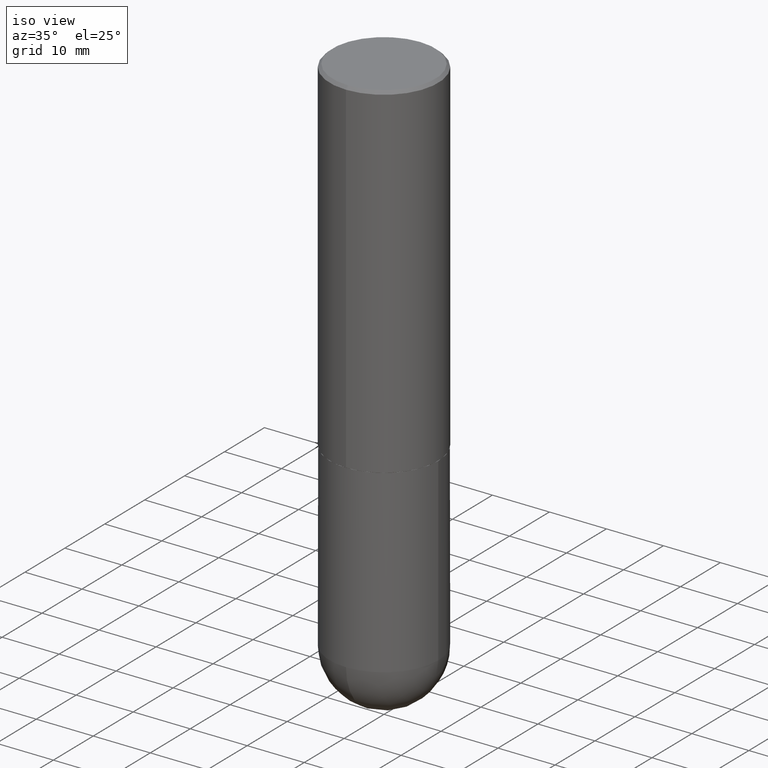
[diagram: clean part render]
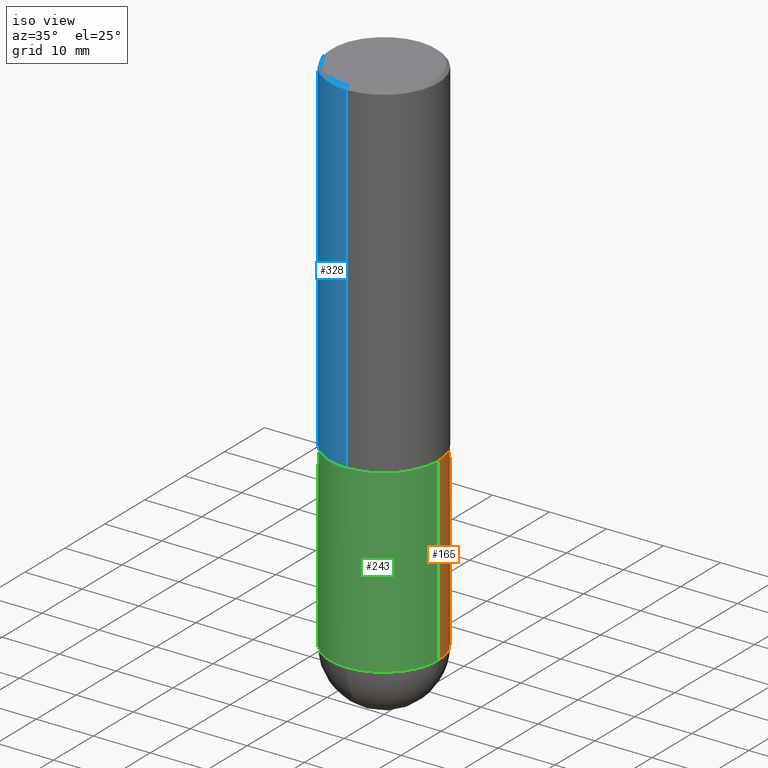
[diagram: same view with three faces highlighted in distinct colors, each labeled with its STEP entity id]
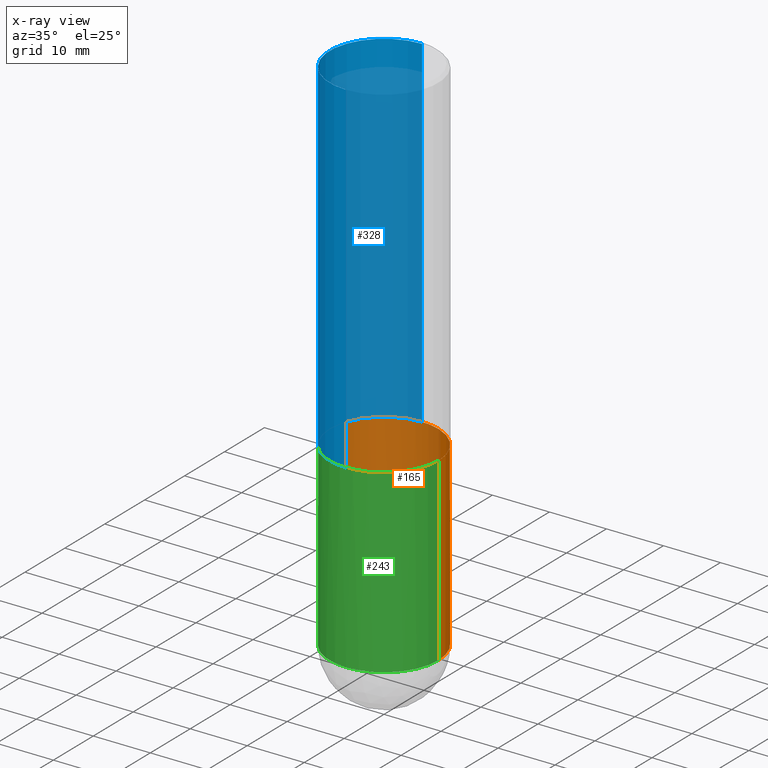
[diagram: x-ray of the same camera — body ghosted, the three highlighted faces saturated]
A machine part, iso view with three faces highlighted in distinct colors.
The next image is the same camera in x-ray (body ghosted, the three faces saturated) — at least one of them is partly hidden behind the body in this view.
Their STEP definitions:

[orange] entity #165 — the highlighted cylindrical surface (partial cylindrical patch) has radius 9.525 mm, axis along (-0, 0, 1).
#3 = ORIENTED_EDGE ( 'NONE', *, *, #45, .T. ) ;
#4 = EDGE_CURVE ( 'NONE', #62, #207, #394, .T. ) ;
#16 = CYLINDRICAL_SURFACE ( 'NONE', #329, 0.3750000000000001110 ) ;
#20 = CARTESIAN_POINT ( 'NONE',  ( 0.3750000000000001110, -2.618611004132350411E-15, 1.828566290923476483E-29 ) ) ;
#45 = EDGE_CURVE ( 'NONE', #62, #274, #204, .T. ) ;
#54 = VECTOR ( 'NONE', #226, 39.37007874015748143 ) ;
#57 = ORIENTED_EDGE ( 'NONE', *, *, #176, .T. ) ;
#62 = VERTEX_POINT ( 'NONE', #80 ) ;
#67 = VERTEX_POINT ( 'NONE', #376 ) ;
#69 = DIRECTION ( 'NONE',  ( -2.445468806185136597E-29, 3.491481338843145583E-15, 1.000000000000000000 ) ) ;
#77 = EDGE_LOOP ( 'NONE', ( #189, #57, #154, #354, #3 ) ) ;
#80 = CARTESIAN_POINT ( 'NONE',  ( 0.3750000000000001110, -1.310178372400889468E-14, -3.624999999999999556 ) ) ;
#85 = CIRCLE ( 'NONE', #383, 0.3750000000000000555 ) ;
#89 = CARTESIAN_POINT ( 'NONE',  ( 5.820215758720624069E-29, -8.309725586446685153E-15, -2.379999999999999893 ) ) ;
#99 = DIRECTION ( 'NONE',  ( 1.000000000000000000, -6.982962677686265922E-15, 4.876176775795935793E-29 ) ) ;
#101 = CIRCLE ( 'NONE', #187, 0.3750000000000001110 ) ;
#104 = DIRECTION ( 'NONE',  ( -2.445468806185136877E-29, 3.491481338843145188E-15, 1.000000000000000000 ) ) ;
#106 = CARTESIAN_POINT ( 'NONE',  ( 2.618611004132438763E-15, 0.3749999999999873990, -3.625000000000000888 ) ) ;
#142 = DIRECTION ( 'NONE',  ( -2.445468806185136597E-29, 3.491481338843145583E-15, 1.000000000000000000 ) ) ;
#154 = ORIENTED_EDGE ( 'NONE', *, *, #349, .F. ) ;
#165 = ADVANCED_FACE ( 'NONE', ( #167 ), #16, .T. ) ;
#167 = FACE_OUTER_BOUND ( 'NONE', #77, .T. ) ;
#175 = CARTESIAN_POINT ( 'NONE',  ( 0.000000000000000000, 0.000000000000000000, 0.000000000000000000 ) ) ;
#176 = EDGE_CURVE ( 'NONE', #67, #323, #398, .T. ) ;
#180 = DIRECTION ( 'NONE',  ( 1.000000000000000000, -6.982962677686265922E-15, 0.000000000000000000 ) ) ;
#187 = AXIS2_PLACEMENT_3D ( 'NONE', #391, #411, #180 ) ;
#189 = ORIENTED_EDGE ( 'NONE', *, *, #307, .T. ) ;
#193 = VECTOR ( 'NONE', #104, 39.37007874015748143 ) ;
#200 = CARTESIAN_POINT ( 'NONE',  ( -0.3750000000000001110, 2.664535259100376486E-15, -1.844600658845590159E-29 ) ) ;
#204 = CIRCLE ( 'NONE', #269, 0.3750000000000001110 ) ;
#207 = VERTEX_POINT ( 'NONE', #250 ) ;
#226 = DIRECTION ( 'NONE',  ( -2.445468806185136877E-29, 3.491481338843145188E-15, 1.000000000000000000 ) ) ;
#246 = DIRECTION ( 'NONE',  ( 1.000000000000000000, -6.982962677686265922E-15, 0.000000000000000000 ) ) ;
#248 = CARTESIAN_POINT ( 'NONE',  ( 8.864824422421120163E-29, -1.265661985330640259E-14, -3.624999999999999556 ) ) ;
#250 = CARTESIAN_POINT ( 'NONE',  ( 0.3750000000000000555, -1.092833659057903675E-14, -2.379999999999999893 ) ) ;
#269 = AXIS2_PLACEMENT_3D ( 'NONE', #248, #69, #246 ) ;
#274 = VERTEX_POINT ( 'NONE', #106 ) ;
#300 = DIRECTION ( 'NONE',  ( -2.445468806185136597E-29, 3.491481338843145583E-15, 1.000000000000000000 ) ) ;
#307 = EDGE_CURVE ( 'NONE', #274, #67, #101, .T. ) ;
#323 = VERTEX_POINT ( 'NONE', #410 ) ;
#329 = AXIS2_PLACEMENT_3D ( 'NONE', #175, #300, #99 ) ;
#345 = DIRECTION ( 'NONE',  ( 1.000000000000000000, -6.982962677686266711E-15, 0.000000000000000000 ) ) ;
#349 = EDGE_CURVE ( 'NONE', #207, #323, #85, .T. ) ;
#354 = ORIENTED_EDGE ( 'NONE', *, *, #4, .F. ) ;
#376 = CARTESIAN_POINT ( 'NONE',  ( -0.3750000000000001110, -7.818637460776168963E-15, -3.624999999999999556 ) ) ;
#383 = AXIS2_PLACEMENT_3D ( 'NONE', #89, #142, #345 ) ;
#391 = CARTESIAN_POINT ( 'NONE',  ( 8.864824422421120163E-29, -1.265661985330640259E-14, -3.624999999999999556 ) ) ;
#394 = LINE ( 'NONE', #20, #193 ) ;
#398 = LINE ( 'NONE', #200, #54 ) ;
#410 = CARTESIAN_POINT ( 'NONE',  ( -0.3750000000000000555, -7.818637460776167385E-15, -2.379999999999999893 ) ) ;
#411 = DIRECTION ( 'NONE',  ( -2.445468806185136597E-29, 3.491481338843145583E-15, 1.000000000000000000 ) ) ;

[blue] entity #328 — the highlighted cylindrical surface (partial cylindrical patch) has radius 9.525 mm, axis along (-0, 0, 1).
#5 = CIRCLE ( 'NONE', #219, 0.3750000000000002776 ) ;
#9 = CARTESIAN_POINT ( 'NONE',  ( -2.618611004132293613E-15, -0.3750000000000086597, -2.378999999999998227 ) ) ;
#10 = DIRECTION ( 'NONE',  ( -2.445088416744134467E-29, 3.492026078173082929E-15, 1.000000000000000000 ) ) ;
#12 = CARTESIAN_POINT ( 'NONE',  ( 2.618611004132350411E-15, 0.3749999999999999445, -0.02000000000000139513 ) ) ;
#17 = EDGE_LOOP ( 'NONE', ( #213, #185, #100, #285 ) ) ;
#34 = VECTOR ( 'NONE', #152, 39.37007874015748143 ) ;
#42 = DIRECTION ( 'NONE',  ( -6.982962677686265922E-15, -1.000000000000000000, 3.494488891895536035E-15 ) ) ;
#53 = CARTESIAN_POINT ( 'NONE',  ( 0.000000000000000000, 0.000000000000000000, 0.000000000000000000 ) ) ;
#91 = VERTEX_POINT ( 'NONE', #9 ) ;
#100 = ORIENTED_EDGE ( 'NONE', *, *, #121, .T. ) ;
#103 = CARTESIAN_POINT ( 'NONE',  ( 2.664535259100406068E-15, 0.3749999999999919509, -2.379000000000000892 ) ) ;
#105 = CARTESIAN_POINT ( 'NONE',  ( 2.664535259100376486E-15, 0.3750000000000001665, -1.309509779314906542E-15 ) ) ;
#115 = CARTESIAN_POINT ( 'NONE',  ( 5.816865343434295520E-29, -8.307530039973762006E-15, -2.378999999999999559 ) ) ;
#121 = EDGE_CURVE ( 'NONE', #91, #283, #405, .T. ) ;
#128 = AXIS2_PLACEMENT_3D ( 'NONE', #53, #344, #303 ) ;
#135 = EDGE_CURVE ( 'NONE', #225, #91, #5, .T. ) ;
#145 = EDGE_CURVE ( 'NONE', #225, #195, #308, .T. ) ;
#152 = DIRECTION ( 'NONE',  ( -2.445088416744134467E-29, 3.492026078173082929E-15, 1.000000000000000000 ) ) ;
#178 = AXIS2_PLACEMENT_3D ( 'NONE', #198, #10, #42 ) ;
#185 = ORIENTED_EDGE ( 'NONE', *, *, #135, .T. ) ;
#195 = VERTEX_POINT ( 'NONE', #12 ) ;
#198 = CARTESIAN_POINT ( 'NONE',  ( 4.890176833488289918E-31, -6.984052156346196327E-17, -0.02000000000000008715 ) ) ;
#203 = DIRECTION ( 'NONE',  ( -2.445088416744134467E-29, 3.492026078173082929E-15, 1.000000000000000000 ) ) ;
#213 = ORIENTED_EDGE ( 'NONE', *, *, #145, .F. ) ;
#219 = AXIS2_PLACEMENT_3D ( 'NONE', #115, #340, #343 ) ;
#225 = VERTEX_POINT ( 'NONE', #103 ) ;
#258 = CARTESIAN_POINT ( 'NONE',  ( -2.572686749164323547E-15, -0.3750000000000001110, -0.01999999999999877570 ) ) ;
#262 = EDGE_CURVE ( 'NONE', #195, #283, #399, .T. ) ;
#279 = CARTESIAN_POINT ( 'NONE',  ( -2.618611004132351200E-15, -0.3750000000000001665, 1.309509779314906542E-15 ) ) ;
#283 = VERTEX_POINT ( 'NONE', #258 ) ;
#285 = ORIENTED_EDGE ( 'NONE', *, *, #262, .F. ) ;
#303 = DIRECTION ( 'NONE',  ( -6.982962677686266711E-15, -1.000000000000000000, 3.492026078173082534E-15 ) ) ;
#308 = LINE ( 'NONE', #105, #363 ) ;
#328 = ADVANCED_FACE ( 'NONE', ( #371 ), #341, .T. ) ;
#340 = DIRECTION ( 'NONE',  ( -2.445088416744134467E-29, 3.492026078173082929E-15, 1.000000000000000000 ) ) ;
#341 = CYLINDRICAL_SURFACE ( 'NONE', #128, 0.3750000000000001665 ) ;
#343 = DIRECTION ( 'NONE',  ( -6.982962677686266711E-15, -1.000000000000000000, 3.642463991552348591E-15 ) ) ;
#344 = DIRECTION ( 'NONE',  ( -2.445088416744134467E-29, 3.492026078173082929E-15, 1.000000000000000000 ) ) ;
#363 = VECTOR ( 'NONE', #203, 39.37007874015748143 ) ;
#371 = FACE_OUTER_BOUND ( 'NONE', #17, .T. ) ;
#399 = CIRCLE ( 'NONE', #178, 0.3750000000000000555 ) ;
#405 = LINE ( 'NONE', #279, #34 ) ;

[green] entity #243 — the highlighted cylindrical surface (partial cylindrical patch) has radius 9.525 mm, axis along (-0, 0, 1).
#4 = EDGE_CURVE ( 'NONE', #62, #207, #394, .T. ) ;
#13 = CIRCLE ( 'NONE', #322, 0.3750000000000001110 ) ;
#20 = CARTESIAN_POINT ( 'NONE',  ( 0.3750000000000001110, -2.618611004132350411E-15, 1.828566290923476483E-29 ) ) ;
#30 = ORIENTED_EDGE ( 'NONE', *, *, #4, .T. ) ;
#40 = CIRCLE ( 'NONE', #304, 0.3750000000000001110 ) ;
#46 = CYLINDRICAL_SURFACE ( 'NONE', #107, 0.3750000000000001110 ) ;
#50 = DIRECTION ( 'NONE',  ( -2.445468806185136597E-29, 3.491481338843145583E-15, 1.000000000000000000 ) ) ;
#54 = VECTOR ( 'NONE', #226, 39.37007874015748143 ) ;
#62 = VERTEX_POINT ( 'NONE', #80 ) ;
#67 = VERTEX_POINT ( 'NONE', #376 ) ;
#73 = DIRECTION ( 'NONE',  ( 1.000000000000000000, -6.982962677686265922E-15, 4.876176775795935793E-29 ) ) ;
#80 = CARTESIAN_POINT ( 'NONE',  ( 0.3750000000000001110, -1.310178372400889468E-14, -3.624999999999999556 ) ) ;
#83 = DIRECTION ( 'NONE',  ( -2.445468806185136597E-29, 3.491481338843145583E-15, 1.000000000000000000 ) ) ;
#104 = DIRECTION ( 'NONE',  ( -2.445468806185136877E-29, 3.491481338843145188E-15, 1.000000000000000000 ) ) ;
#107 = AXIS2_PLACEMENT_3D ( 'NONE', #136, #50, #73 ) ;
#108 = FACE_OUTER_BOUND ( 'NONE', #382, .T. ) ;
#111 = EDGE_CURVE ( 'NONE', #367, #62, #13, .T. ) ;
#112 = CARTESIAN_POINT ( 'NONE',  ( 8.864824422421120163E-29, -1.265661985330640259E-14, -3.624999999999999556 ) ) ;
#113 = DIRECTION ( 'NONE',  ( 1.000000000000000000, -6.982962677686266711E-15, 0.000000000000000000 ) ) ;
#118 = ORIENTED_EDGE ( 'NONE', *, *, #378, .F. ) ;
#136 = CARTESIAN_POINT ( 'NONE',  ( 0.000000000000000000, 0.000000000000000000, 0.000000000000000000 ) ) ;
#140 = DIRECTION ( 'NONE',  ( 1.000000000000000000, -6.982962677686265922E-15, 0.000000000000000000 ) ) ;
#144 = CARTESIAN_POINT ( 'NONE',  ( 5.820215758720624069E-29, -8.309725586446685153E-15, -2.379999999999999893 ) ) ;
#176 = EDGE_CURVE ( 'NONE', #67, #323, #398, .T. ) ;
#193 = VECTOR ( 'NONE', #104, 39.37007874015748143 ) ;
#199 = ORIENTED_EDGE ( 'NONE', *, *, #176, .F. ) ;
#200 = CARTESIAN_POINT ( 'NONE',  ( -0.3750000000000001110, 2.664535259100376486E-15, -1.844600658845590159E-29 ) ) ;
#207 = VERTEX_POINT ( 'NONE', #250 ) ;
#226 = DIRECTION ( 'NONE',  ( -2.445468806185136877E-29, 3.491481338843145188E-15, 1.000000000000000000 ) ) ;
#235 = DIRECTION ( 'NONE',  ( 1.000000000000000000, -6.982962677686265922E-15, 0.000000000000000000 ) ) ;
#243 = ADVANCED_FACE ( 'NONE', ( #108 ), #46, .T. ) ;
#244 = CIRCLE ( 'NONE', #409, 0.3750000000000000555 ) ;
#250 = CARTESIAN_POINT ( 'NONE',  ( 0.3750000000000000555, -1.092833659057903675E-14, -2.379999999999999893 ) ) ;
#254 = ORIENTED_EDGE ( 'NONE', *, *, #265, .T. ) ;
#256 = ORIENTED_EDGE ( 'NONE', *, *, #111, .T. ) ;
#263 = DIRECTION ( 'NONE',  ( -2.445468806185136597E-29, 3.491481338843145583E-15, 1.000000000000000000 ) ) ;
#265 = EDGE_CURVE ( 'NONE', #67, #367, #40, .T. ) ;
#286 = CARTESIAN_POINT ( 'NONE',  ( 8.864824422421120163E-29, -1.265661985330640259E-14, -3.624999999999999556 ) ) ;
#304 = AXIS2_PLACEMENT_3D ( 'NONE', #286, #339, #140 ) ;
#309 = CARTESIAN_POINT ( 'NONE',  ( -2.664535259100290106E-15, -0.3750000000000131006, -3.624999999999998668 ) ) ;
#322 = AXIS2_PLACEMENT_3D ( 'NONE', #112, #83, #235 ) ;
#323 = VERTEX_POINT ( 'NONE', #410 ) ;
#339 = DIRECTION ( 'NONE',  ( -2.445468806185136597E-29, 3.491481338843145583E-15, 1.000000000000000000 ) ) ;
#367 = VERTEX_POINT ( 'NONE', #309 ) ;
#376 = CARTESIAN_POINT ( 'NONE',  ( -0.3750000000000001110, -7.818637460776168963E-15, -3.624999999999999556 ) ) ;
#378 = EDGE_CURVE ( 'NONE', #323, #207, #244, .T. ) ;
#382 = EDGE_LOOP ( 'NONE', ( #199, #254, #256, #30, #118 ) ) ;
#394 = LINE ( 'NONE', #20, #193 ) ;
#398 = LINE ( 'NONE', #200, #54 ) ;
#409 = AXIS2_PLACEMENT_3D ( 'NONE', #144, #263, #113 ) ;
#410 = CARTESIAN_POINT ( 'NONE',  ( -0.3750000000000000555, -7.818637460776167385E-15, -2.379999999999999893 ) ) ;